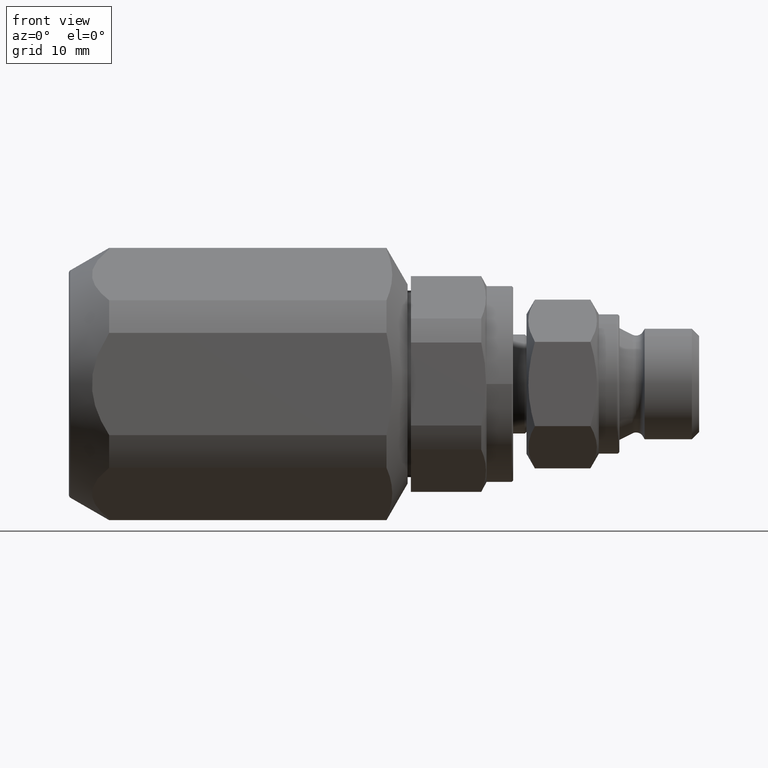
[diagram: clean part render]
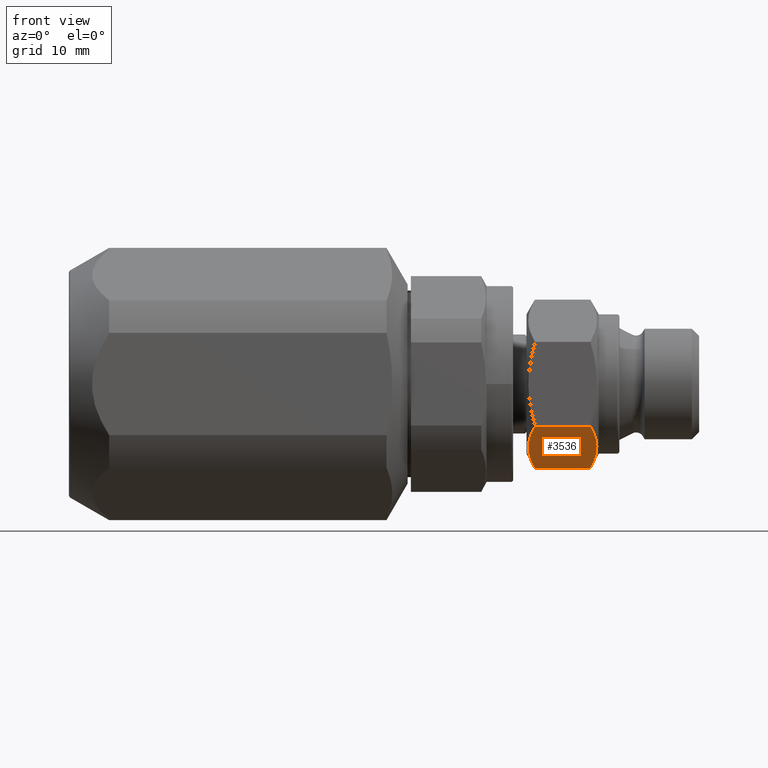
[diagram: same view with one face highlighted and labeled with its STEP entity id]
A machine part, front view. The second image highlights one B-rep face of the part: STEP entity #3536.
In plain terms, the highlighted planar face has unit normal (0, -0.5, -0.866).
Its self-contained STEP definition (entity closure, byte-faithful):
#135 = EDGE_LOOP ( 'NONE', ( #1828, #1869, #1842, #1819 ) ) ;
#316 = EDGE_CURVE ( 'NONE', #2648, #2640, #1803, .T. ) ;
#317 = EDGE_CURVE ( 'NONE', #2640, #2633, #2964, .T. ) ;
#567 = EDGE_CURVE ( 'NONE', #2648, #2642, #2985, .T. ) ;
#582 = CARTESIAN_POINT ( 'NONE',  ( 78.52884449315777700, -11.00000000000000200, -6.350852961085881700 ) ) ;
#583 = CARTESIAN_POINT ( 'NONE',  ( 78.82819305134111700, -10.10195432545097700, -6.869339873031341500 ) ) ;
#584 = CARTESIAN_POINT ( 'NONE',  ( 79.07491047820269600, -9.197361224542417400, -7.391606943347973400 ) ) ;
#585 = CARTESIAN_POINT ( 'NONE',  ( 79.41669421055900100, -7.369309295834126400, -8.447033216480321000 ) ) ;
#586 = CARTESIAN_POINT ( 'NONE',  ( 79.51063311894395700, -6.445710217400053600, -8.980273393037528300 ) ) ;
#587 = CARTESIAN_POINT ( 'NONE',  ( 79.51166494042347200, -5.042910656062857400, -9.790180097394651800 ) ) ;
#588 = CARTESIAN_POINT ( 'NONE',  ( 79.48870053356711200, -4.573110312117729700, -10.06141945243674500 ) ) ;
#589 = CARTESIAN_POINT ( 'NONE',  ( 79.39915140728152200, -3.643795727710671200, -10.59795947790601100 ) ) ;
#590 = CARTESIAN_POINT ( 'NONE',  ( 79.33265757321400700, -3.182254080687666700, -10.86443067205696700 ) ) ;
#591 = CARTESIAN_POINT ( 'NONE',  ( 79.07589427640022000, -1.805846254637397000, -11.65910010094180300 ) ) ;
#592 = CARTESIAN_POINT ( 'NONE',  ( 78.82856621737974500, -0.8991651726654162900, -12.18257266768746300 ) ) ;
#593 = CARTESIAN_POINT ( 'NONE',  ( 78.52884449315777700, -8.673617379884035500E-015, -12.70170592217177100 ) ) ;
#594 = CARTESIAN_POINT ( 'NONE',  ( 94.90000000000003400, -8.673617379884035500E-015, -12.70170592217177100 ) ) ;
#595 = DIRECTION ( 'NONE',  ( -1.000000000000000000, 0.0000000000000000000, 0.0000000000000000000 ) ) ;
#691 = EDGE_CURVE ( 'NONE', #2633, #2642, #1799, .T. ) ;
#716 = CARTESIAN_POINT ( 'NONE',  ( 94.90000000000003400, -11.00000000000000200, -6.350852961085881700 ) ) ;
#717 = DIRECTION ( 'NONE',  ( -1.000000000000000000, 0.0000000000000000000, 0.0000000000000000000 ) ) ;
#720 = CARTESIAN_POINT ( 'NONE',  ( 70.17115550684226800, -8.673617379884035500E-015, -12.70170592217177100 ) ) ;
#721 = CARTESIAN_POINT ( 'NONE',  ( 69.87180694865891400, -0.8980456745490355000, -12.18321901022631000 ) ) ;
#722 = CARTESIAN_POINT ( 'NONE',  ( 69.62508952179734900, -1.802638775457592300, -11.66095193990967600 ) ) ;
#723 = CARTESIAN_POINT ( 'NONE',  ( 69.28330578944107300, -3.630690704165886500, -10.60552566677731800 ) ) ;
#724 = CARTESIAN_POINT ( 'NONE',  ( 69.18936688105610200, -4.554289782599964200, -10.07228549022011800 ) ) ;
#725 = CARTESIAN_POINT ( 'NONE',  ( 69.18833505957661600, -5.957089343937163900, -9.262378785863001300 ) ) ;
#726 = CARTESIAN_POINT ( 'NONE',  ( 69.21129946643296200, -6.426889687882273000, -8.991139430820908300 ) ) ;
#727 = CARTESIAN_POINT ( 'NONE',  ( 69.30084859271855200, -7.356204272289333300, -8.454599405351647300 ) ) ;
#728 = CARTESIAN_POINT ( 'NONE',  ( 69.36734242678610900, -7.817745919312336900, -8.188128211200687900 ) ) ;
#729 = CARTESIAN_POINT ( 'NONE',  ( 69.62410572359991100, -9.194153745362609000, -7.393458782315859100 ) ) ;
#730 = CARTESIAN_POINT ( 'NONE',  ( 69.87143378262032900, -10.10083482733459100, -6.869986215570196300 ) ) ;
#731 = CARTESIAN_POINT ( 'NONE',  ( 70.17115550684226800, -11.00000000000000200, -6.350852961085881700 ) ) ;
#1655 = CARTESIAN_POINT ( 'NONE',  ( 70.17115550684226800, -8.673617379884035500E-015, -12.70170592217177100 ) ) ;
#1662 = CARTESIAN_POINT ( 'NONE',  ( 78.52884449315777700, -8.673617379884035500E-015, -12.70170592217177100 ) ) ;
#1664 = CARTESIAN_POINT ( 'NONE',  ( 70.17115550684226800, -11.00000000000000200, -6.350852961085881700 ) ) ;
#1670 = CARTESIAN_POINT ( 'NONE',  ( 78.52884449315777700, -11.00000000000000200, -6.350852961085881700 ) ) ;
#1799 = B_SPLINE_CURVE_WITH_KNOTS ( 'NONE', 3,
 ( #720, #721, #722, #723, #724, #725, #726, #727, #728, #729, #730, #731 ),
 .UNSPECIFIED., .F., .F.,
 ( 4, 2, 2, 2, 2, 4 ),
 ( 2.380730006248308900E-007, 0.003207242758348982000, 0.006414247443697339800, 0.008017749786371517600, 0.009621252129045698000, 0.01282825681439405900 ),
 .UNSPECIFIED. ) ;
#1803 = B_SPLINE_CURVE_WITH_KNOTS ( 'NONE', 3,
 ( #582, #583, #584, #585, #586, #587, #588, #589, #590, #591, #592, #593 ),
 .UNSPECIFIED., .F., .F.,
 ( 4, 2, 2, 2, 2, 4 ),
 ( 2.380730006303978000E-007, 0.003207242758348985900, 0.006414247443697341500, 0.008017749786371519300, 0.009621252129045694500, 0.01282825681439404500 ),
 .UNSPECIFIED. ) ;
#1819 = ORIENTED_EDGE ( 'NONE', *, *, #691, .F. ) ;
#1828 = ORIENTED_EDGE ( 'NONE', *, *, #317, .F. ) ;
#1842 = ORIENTED_EDGE ( 'NONE', *, *, #567, .T. ) ;
#1869 = ORIENTED_EDGE ( 'NONE', *, *, #316, .F. ) ;
#2120 = PLANE ( 'NONE',  #2590 ) ;
#2121 = CARTESIAN_POINT ( 'NONE',  ( 94.90000000000003400, -11.00000000000000200, -6.350852961085881700 ) ) ;
#2122 = DIRECTION ( 'NONE',  ( 0.0000000000000000000, -0.5000000000000004400, -0.8660254037844383700 ) ) ;
#2123 = DIRECTION ( 'NONE',  ( 0.0000000000000000000, 0.8660254037844383700, -0.5000000000000004400 ) ) ;
#2590 = AXIS2_PLACEMENT_3D ( 'NONE', #2121, #2122, #2123 ) ;
#2633 = VERTEX_POINT ( 'NONE', #1655 ) ;
#2640 = VERTEX_POINT ( 'NONE', #1662 ) ;
#2642 = VERTEX_POINT ( 'NONE', #1664 ) ;
#2648 = VERTEX_POINT ( 'NONE', #1670 ) ;
#2964 = LINE ( 'NONE', #594, #2966 ) ;
#2966 = VECTOR ( 'NONE', #595, 1000.000000000000000 ) ;
#2985 = LINE ( 'NONE', #716, #2987 ) ;
#2987 = VECTOR ( 'NONE', #717, 1000.000000000000000 ) ;
#3360 = FACE_OUTER_BOUND ( 'NONE', #135, .T. ) ;
#3536 = ADVANCED_FACE ( 'NONE', ( #3360 ), #2120, .T. ) ;